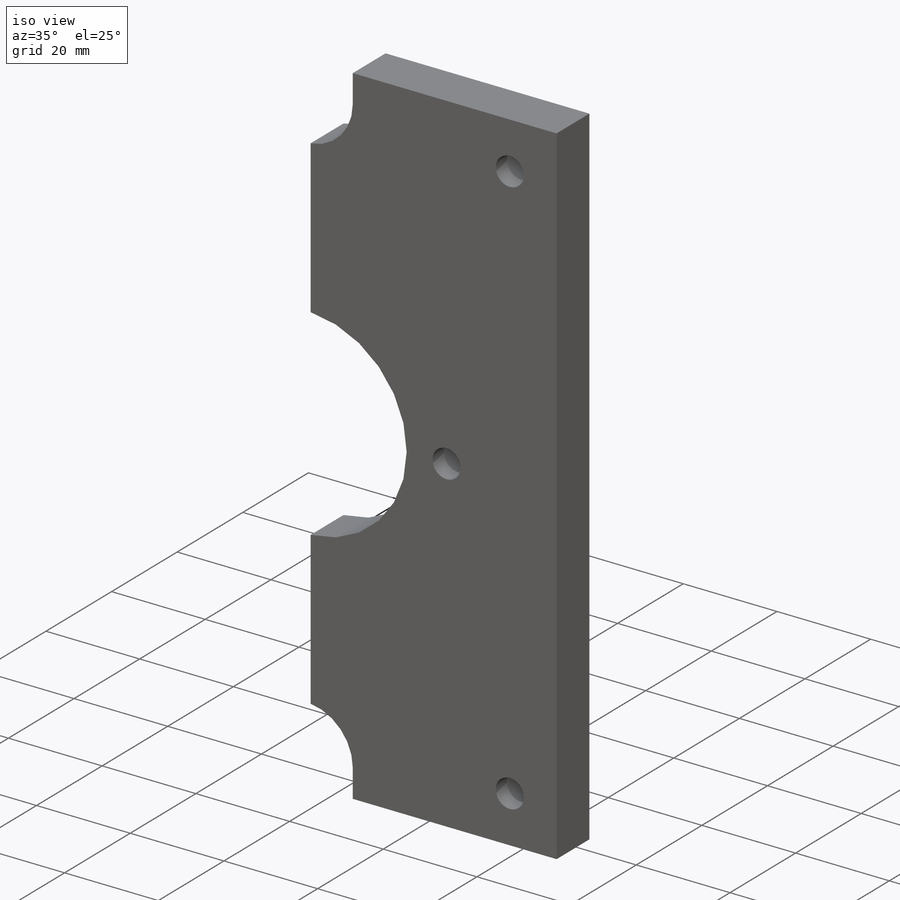
[diagram: iso view]
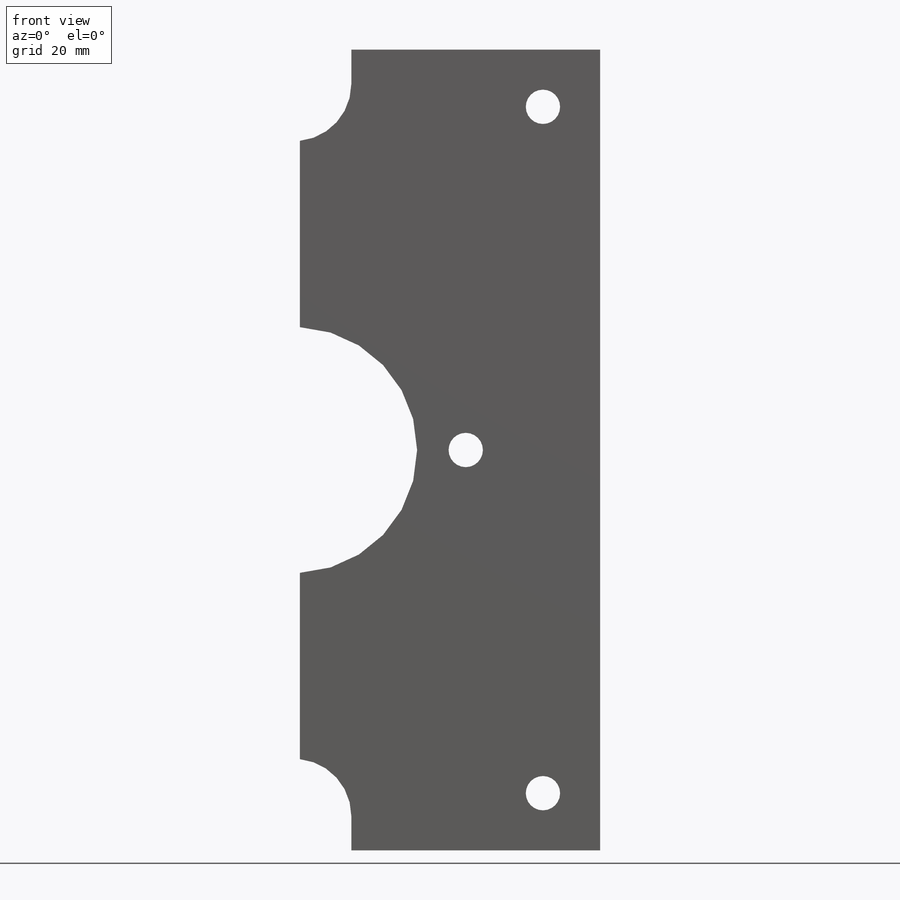
[diagram: front view]
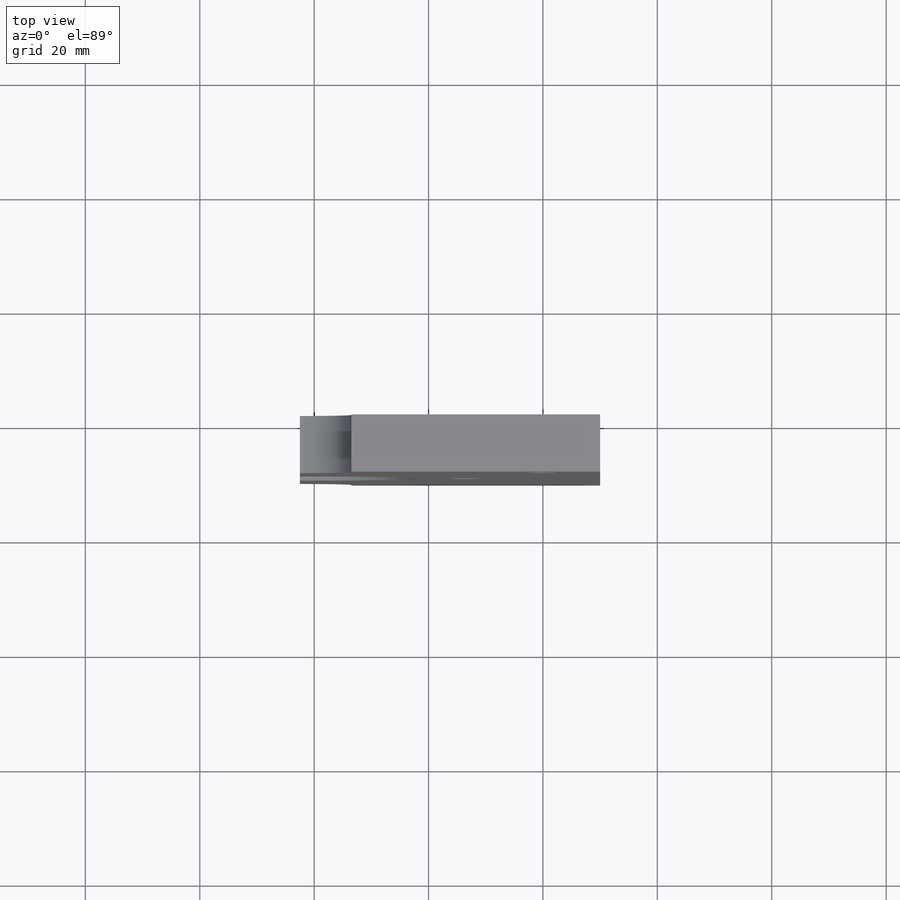
[diagram: top view]
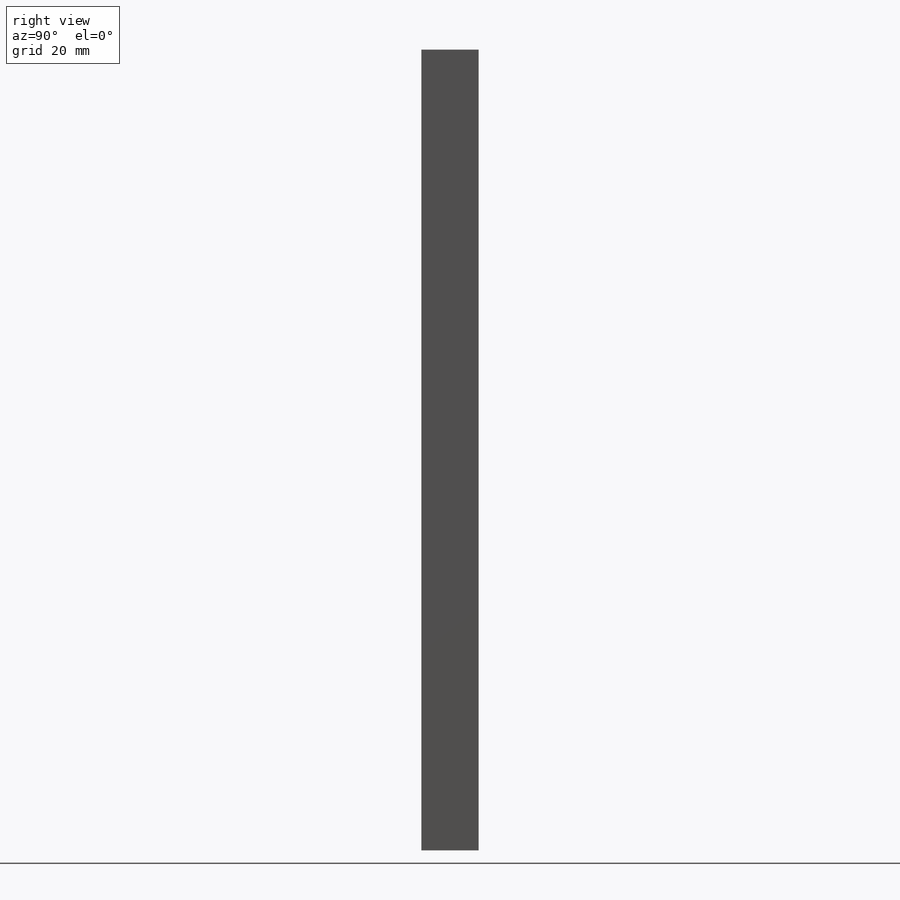
[diagram: right view]
SOLIDWORKS PART (.sldprt)
format: sldprt  version: not decoded by parser v0  size: 294,400 bytes
history: native  units: mm
features: sketch x4, cut_extrude x3, material x1, extrude x1 (+12 scaffold rows collapsed)
feature tree (21):
  scaffold x12  (default folders/planes/origin — collapsed)
  material  "7079 Alloy"
  sketch  "Sketch1"  dims[c1.D3=~21.493405mm c1.D1=140.0mm c1.D2=90.0mm c2.D3=15.0mm c2.D2=6.0mm]
  extrude  "Extrude2"  Depth=10mm
  sketch  "Sketch5"  dims[D1=~6.029303mm]
  cut_extrude  "Cut-Extrude2"  Depth=6.5mm
  sketch  "Sketch7"  dims[D1=30.0mm]
  cut_extrude  "Cut-Extrude3"  Depth=20mm
  sketch  "Sketch8"  dims[D1=7.5mm]
  cut_extrude  "Cut-Extrude4"  Depth=10mm
decode coverage: 8 of 8 modeling features carry decoded parameters
note: ~ marks probable driven/reference dimensions
note: suppression state not decoded; provenance and decode notes live in map.json
